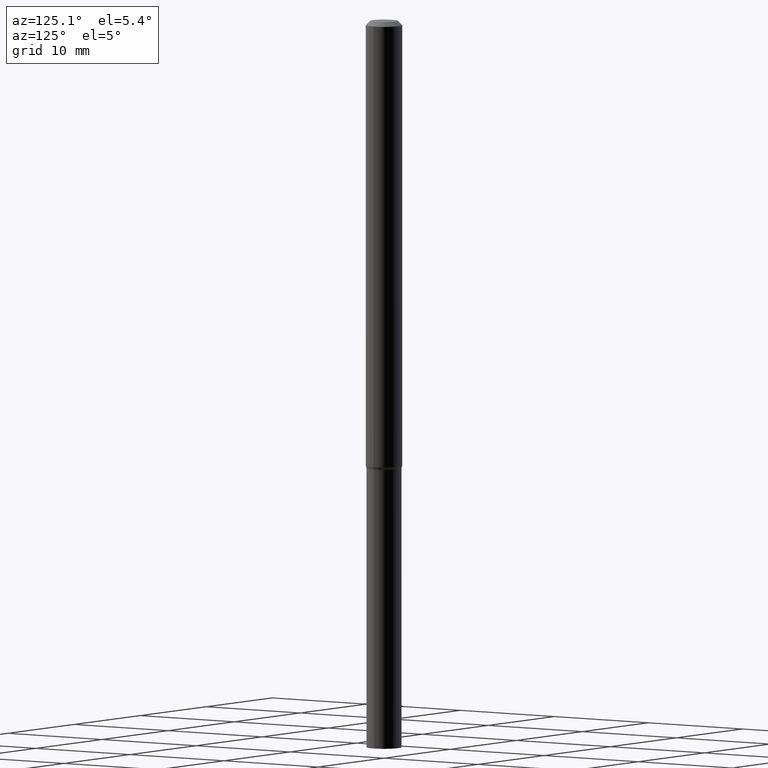
[diagram: clean part render]
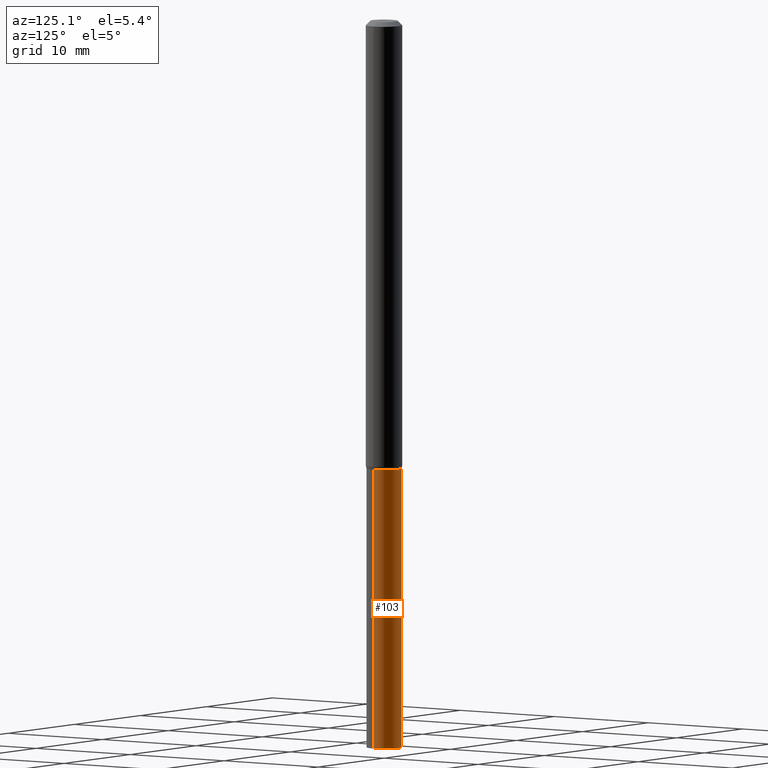
[diagram: same view with one face highlighted and labeled with its STEP entity id]
A machine part, auxiliary view. The second image highlights one B-rep face of the part: STEP entity #103.
In plain terms, the highlighted cylindrical surface (edge-blend (fillet) strip) has radius 1.524 mm, axis along (-0, 0, 1).
Its self-contained STEP definition (entity closure, byte-faithful):
#2 = ORIENTED_EDGE ( 'NONE', *, *, #25, .T. ) ;
#19 = CARTESIAN_POINT ( 'NONE',  ( 0.05999999999999999778, -5.795859022479621407E-15, -1.540000000000000258 ) ) ;
#20 = VERTEX_POINT ( 'NONE', #386 ) ;
#25 = EDGE_CURVE ( 'NONE', #395, #122, #172, .T. ) ;
#53 = ORIENTED_EDGE ( 'NONE', *, *, #184, .F. ) ;
#65 = CARTESIAN_POINT ( 'NONE',  ( -0.05999999999999999778, -6.626466663007093973E-15, -1.540000000000000258 ) ) ;
#78 = DIRECTION ( 'NONE',  ( -2.445468806185136597E-29, 3.491481338843145583E-15, 1.000000000000000000 ) ) ;
#87 = VECTOR ( 'NONE', #243, 39.37007874015748143 ) ;
#103 = ADVANCED_FACE ( 'NONE', ( #136 ), #134, .T. ) ;
#106 = CIRCLE ( 'NONE', #416, 0.05999999999999999778 ) ;
#122 = VERTEX_POINT ( 'NONE', #65 ) ;
#130 = CARTESIAN_POINT ( 'NONE',  ( 3.766021961525111077E-29, -5.376881261818445562E-15, -1.540000000000000258 ) ) ;
#134 = CYLINDRICAL_SURFACE ( 'NONE', #441, 0.05999999999999999778 ) ;
#136 = FACE_OUTER_BOUND ( 'NONE', #404, .T. ) ;
#146 = EDGE_CURVE ( 'NONE', #20, #395, #374, .T. ) ;
#166 = DIRECTION ( 'NONE',  ( 1.000000000000000000, -6.982962677686267499E-15, 4.876176775795936353E-29 ) ) ;
#167 = DIRECTION ( 'NONE',  ( -2.445468806185136877E-29, 3.491481338843145188E-15, 1.000000000000000000 ) ) ;
#172 = LINE ( 'NONE', #426, #87 ) ;
#184 = EDGE_CURVE ( 'NONE', #227, #122, #106, .T. ) ;
#201 = DIRECTION ( 'NONE',  ( -2.445468806185136597E-29, 3.491481338843145583E-15, 1.000000000000000000 ) ) ;
#208 = CARTESIAN_POINT ( 'NONE',  ( 0.05999999999999999778, -4.189777606611760421E-16, 2.925706065477561756E-30 ) ) ;
#224 = CARTESIAN_POINT ( 'NONE',  ( 6.113672015462842613E-29, -8.728703347107864943E-15, -2.500000000000000000 ) ) ;
#227 = VERTEX_POINT ( 'NONE', #19 ) ;
#243 = DIRECTION ( 'NONE',  ( -2.445468806185136877E-29, 3.491481338843145188E-15, 1.000000000000000000 ) ) ;
#246 = AXIS2_PLACEMENT_3D ( 'NONE', #224, #78, #354 ) ;
#248 = CARTESIAN_POINT ( 'NONE',  ( 0.000000000000000000, 0.000000000000000000, 0.000000000000000000 ) ) ;
#285 = VECTOR ( 'NONE', #167, 39.37007874015748143 ) ;
#307 = ORIENTED_EDGE ( 'NONE', *, *, #361, .F. ) ;
#308 = DIRECTION ( 'NONE',  ( -2.445468806185136597E-29, 3.491481338843145583E-15, 1.000000000000000000 ) ) ;
#341 = ORIENTED_EDGE ( 'NONE', *, *, #146, .T. ) ;
#354 = DIRECTION ( 'NONE',  ( 1.000000000000000000, -6.982962677686251722E-15, 0.000000000000000000 ) ) ;
#361 = EDGE_CURVE ( 'NONE', #20, #227, #424, .T. ) ;
#374 = CIRCLE ( 'NONE', #246, 0.05999999999999999778 ) ;
#386 = CARTESIAN_POINT ( 'NONE',  ( 0.05999999999999999778, -9.147681107769039999E-15, -2.500000000000000000 ) ) ;
#392 = CARTESIAN_POINT ( 'NONE',  ( -0.05999999999999999778, -6.626466663007093973E-15, -2.500000000000000000 ) ) ;
#395 = VERTEX_POINT ( 'NONE', #392 ) ;
#404 = EDGE_LOOP ( 'NONE', ( #341, #2, #53, #307 ) ) ;
#416 = AXIS2_PLACEMENT_3D ( 'NONE', #130, #308, #445 ) ;
#424 = LINE ( 'NONE', #208, #285 ) ;
#426 = CARTESIAN_POINT ( 'NONE',  ( -0.05999999999999999778, 4.263256414560600957E-16, -2.951361054152943413E-30 ) ) ;
#441 = AXIS2_PLACEMENT_3D ( 'NONE', #248, #201, #166 ) ;
#445 = DIRECTION ( 'NONE',  ( 1.000000000000000000, -6.982962677686268288E-15, 0.000000000000000000 ) ) ;